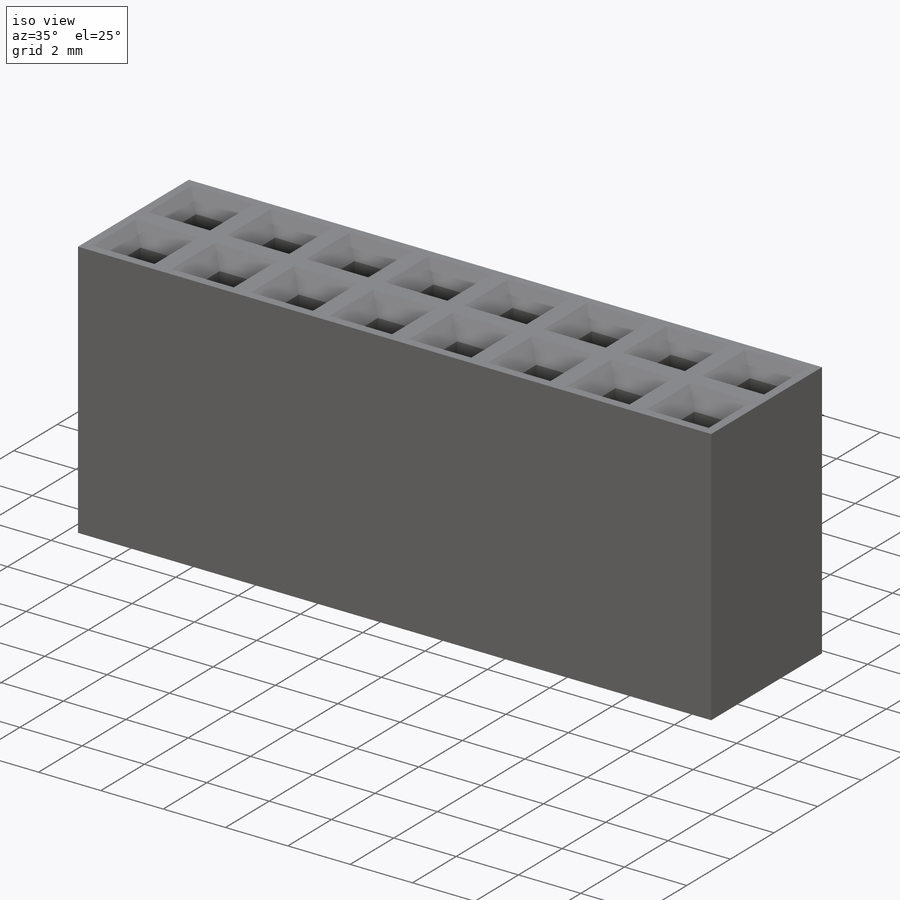
[diagram: iso view]
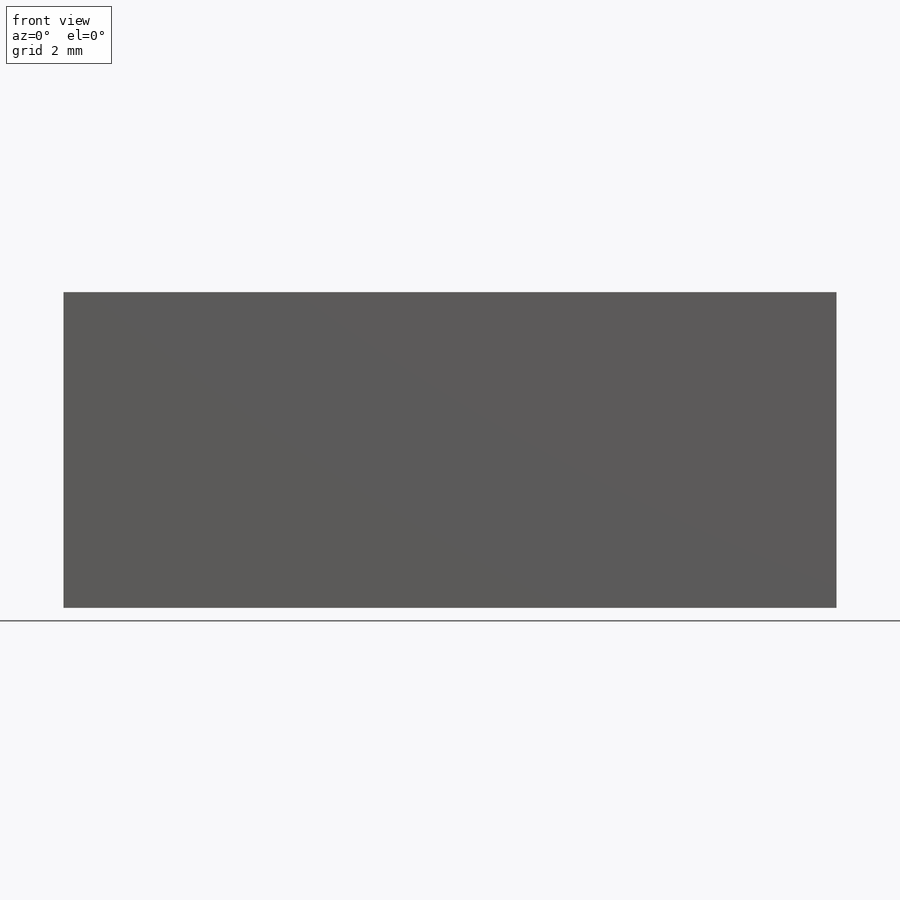
[diagram: front view]
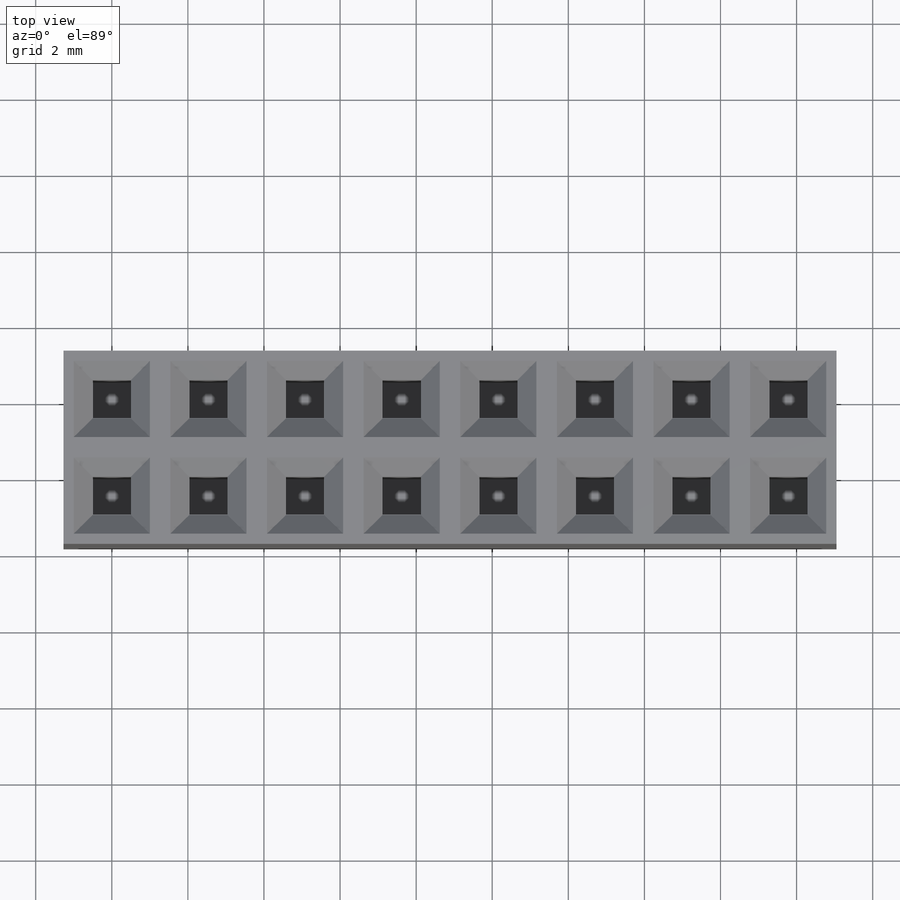
[diagram: top view]
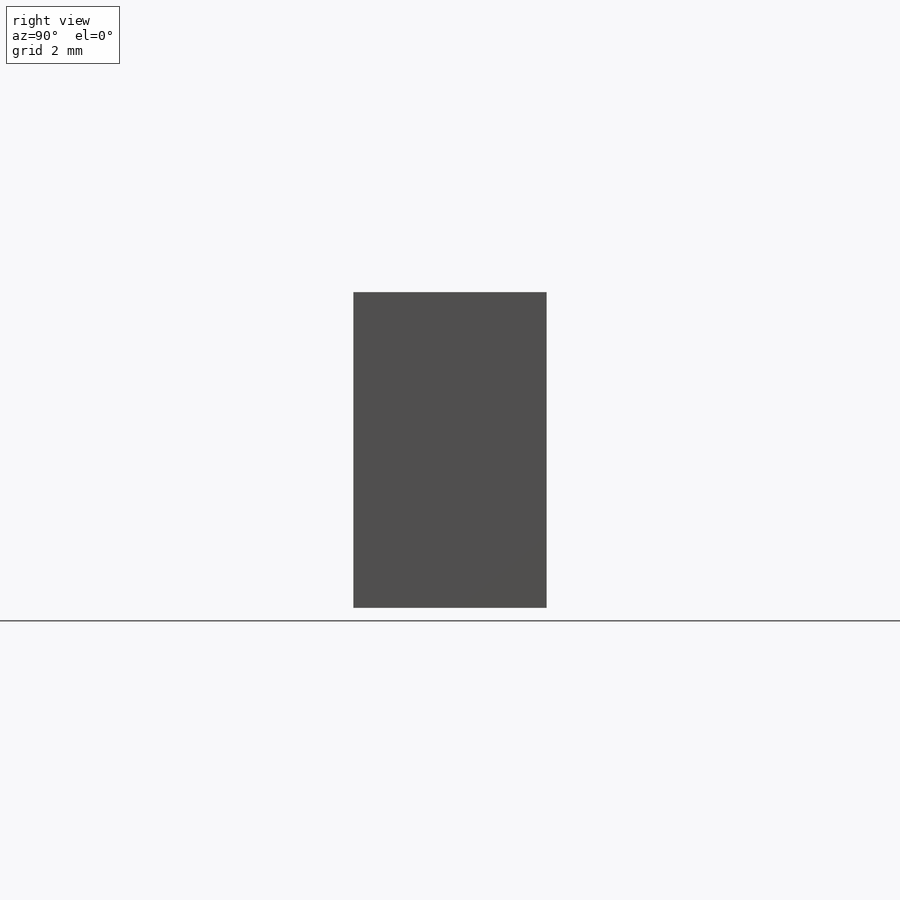
[diagram: right view]
SOLIDWORKS PART (.sldprt)
format: sldprt  version: not decoded by parser v0  size: 913,920 bytes
history: native  units: mm
features: sketch x2, material x1, extrude x1, cut_extrude x1, chamfer x1, pattern_linear x1, mirror x1 + 1 further entry (+12 scaffold rows collapsed)
feature tree (21):
  scaffold x12  (default folders/planes/origin — collapsed)
  material  "Material <sin especificar>"
  "Tabla de diseño"
  sketch  "Sketch1"  dims[D1=2.54mm D2=2.54mm]
  extrude  "Cuerpo"  Depth=8.3mm
  sketch  "Sketch2"  dims[D1=1.0mm D2=1.0mm]
  cut_extrude  "Female PIN"  Depth=4mm
  chamfer  "Chaflan"  Distance=0.5mm Angle=45deg
  pattern_linear  "Matriz"  Count1=8 Count2=1 Spacing1=2.54mm Spacing2=50mm
  mirror  "Simetría"
decode coverage: 6 of 7 modeling features carry decoded parameters; 1 rows unclassified (native names shown)
note: suppression state not decoded; provenance and decode notes live in map.json
